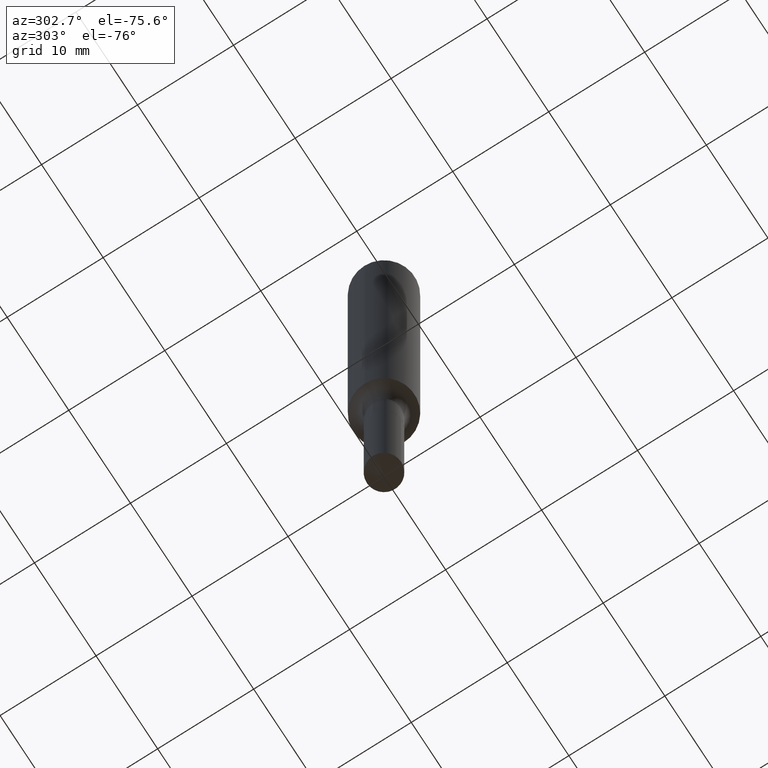
[diagram: clean part render]
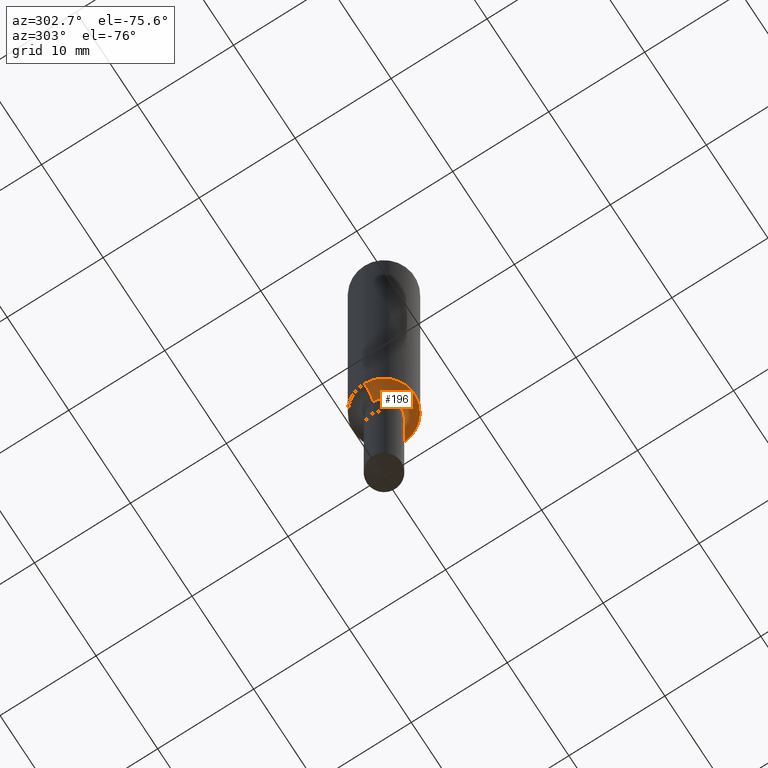
[diagram: same view with one face highlighted and labeled with its STEP entity id]
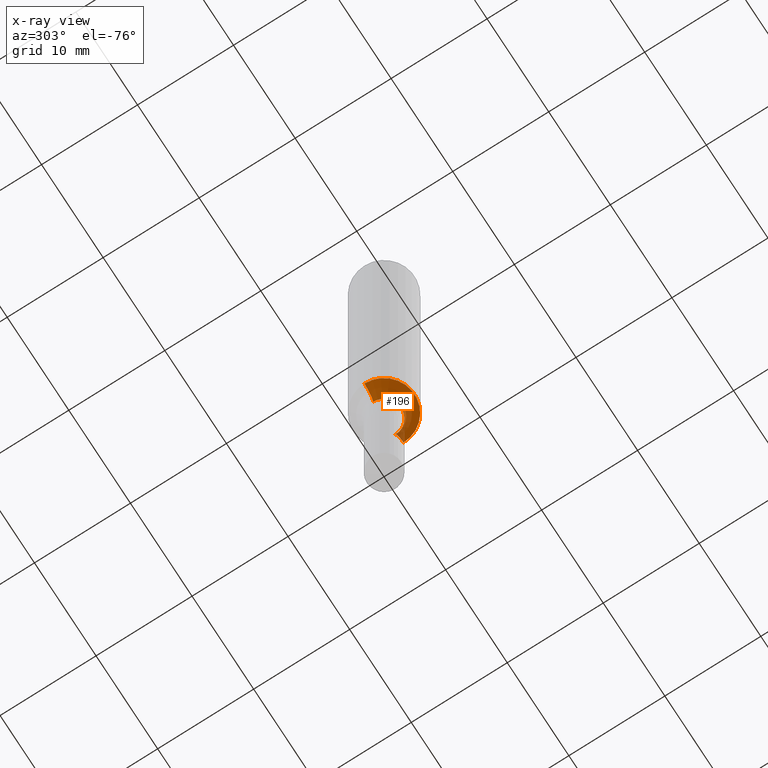
[diagram: x-ray of the same camera — body ghosted, the highlighted face saturated]
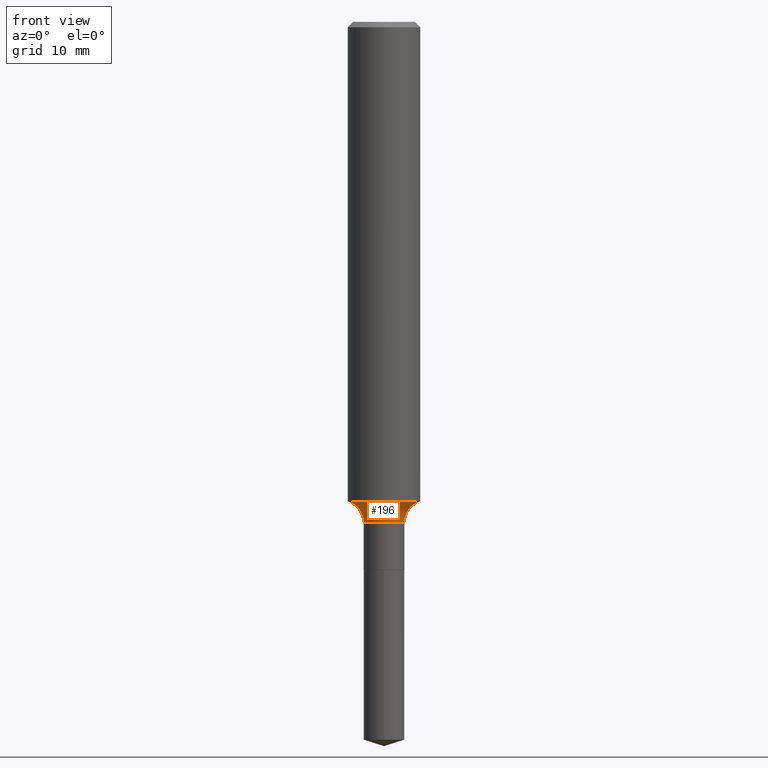
[diagram: same view with one face highlighted and labeled with its STEP entity id]
A machine part, auxiliary view. The second image highlights one B-rep face of the part: STEP entity #196.
The next image is the same camera in x-ray: the body ghosted, the highlighted face saturated — about 4% of this face is hidden behind the body in this view.
A second angle (front view) of the same face is appended — the face is thin or edge-on in the first view.
In plain terms, the highlighted toroidal blend (fillet) surface has major radius 3.7668 mm and minor (blend) radius 1.9812 mm.
Its self-contained STEP definition (entity closure, byte-faithful):
#15 = ORIENTED_EDGE ( 'NONE', *, *, #25, .F. ) ;
#21 = EDGE_LOOP ( 'NONE', ( #125, #430, #233, #15 ) ) ;
#25 = EDGE_CURVE ( 'NONE', #171, #136, #375, .T. ) ;
#37 = DIRECTION ( 'NONE',  ( 7.105427357601001859E-15, 1.000000000000000000, -3.491481338843145583E-15 ) ) ;
#40 = DIRECTION ( 'NONE',  ( 1.000000000000000000, -6.982962677686266711E-15, 0.000000000000000000 ) ) ;
#45 = CARTESIAN_POINT ( 'NONE',  ( 4.227971019013483248E-29, -6.036422086725915643E-15, -1.728900000000000325 ) ) ;
#67 = CIRCLE ( 'NONE', #408, 0.07029999999999998750 ) ;
#73 = DIRECTION ( 'NONE',  ( -2.445468806185136597E-29, 3.491481338843145583E-15, 1.000000000000000000 ) ) ;
#84 = DIRECTION ( 'NONE',  ( -2.445468806185136597E-29, 3.491481338843145583E-15, 1.000000000000000000 ) ) ;
#97 = AXIS2_PLACEMENT_3D ( 'NONE', #318, #84, #428 ) ;
#125 = ORIENTED_EDGE ( 'NONE', *, *, #357, .F. ) ;
#136 = VERTEX_POINT ( 'NONE', #221 ) ;
#139 = CIRCLE ( 'NONE', #97, 0.1250000000000001943 ) ;
#171 = VERTEX_POINT ( 'NONE', #272 ) ;
#196 = ADVANCED_FACE ( 'NONE', ( #421 ), #416, .F. ) ;
#215 = DIRECTION ( 'NONE',  ( 1.000000000000000000, -6.982962677686268288E-15, 0.000000000000000000 ) ) ;
#221 = CARTESIAN_POINT ( 'NONE',  ( 0.07029999999999998750, -6.527324362967259801E-15, -1.728900000000000325 ) ) ;
#232 = CARTESIAN_POINT ( 'NONE',  ( 4.227971019013483248E-29, -6.036422086725915643E-15, -1.728900000000000325 ) ) ;
#233 = ORIENTED_EDGE ( 'NONE', *, *, #236, .T. ) ;
#235 = CARTESIAN_POINT ( 'NONE',  ( -0.07029999999999998750, -5.818323939397324002E-15, -1.728900000000000325 ) ) ;
#236 = EDGE_CURVE ( 'NONE', #280, #136, #67, .T. ) ;
#258 = AXIS2_PLACEMENT_3D ( 'NONE', #232, #383, #454 ) ;
#267 = EDGE_CURVE ( 'NONE', #427, #280, #342, .T. ) ;
#272 = CARTESIAN_POINT ( 'NONE',  ( 0.1250000000000003053, -6.649391325372587997E-15, -1.654461367556892881 ) ) ;
#273 = AXIS2_PLACEMENT_3D ( 'NONE', #453, #405, #215 ) ;
#280 = VERTEX_POINT ( 'NONE', #235 ) ;
#309 = DIRECTION ( 'NONE',  ( -1.000000000000000000, 7.105427357601008170E-15, 0.000000000000000000 ) ) ;
#318 = CARTESIAN_POINT ( 'NONE',  ( 4.045933665398783459E-29, -5.776520990661802291E-15, -1.654461367556892881 ) ) ;
#342 = CIRCLE ( 'NONE', #473, 0.07800000000000002764 ) ;
#357 = EDGE_CURVE ( 'NONE', #427, #171, #139, .T. ) ;
#375 = CIRCLE ( 'NONE', #273, 0.07800000000000002764 ) ;
#383 = DIRECTION ( 'NONE',  ( -2.445468806185136597E-29, 3.491481338843145583E-15, 1.000000000000000000 ) ) ;
#390 = CARTESIAN_POINT ( 'NONE',  ( -0.1250000000000003053, -4.888342570961675481E-15, -1.654461367556892881 ) ) ;
#405 = DIRECTION ( 'NONE',  ( -6.982962677686266711E-15, -1.000000000000000000, 3.491481338843145583E-15 ) ) ;
#408 = AXIS2_PLACEMENT_3D ( 'NONE', #45, #73, #40 ) ;
#416 = TOROIDAL_SURFACE ( 'NONE', #258, 0.1482999999999999596, 0.07800000000000002764 ) ;
#420 = CARTESIAN_POINT ( 'NONE',  ( -0.1482999999999999596, -4.982687209593687945E-15, -1.728900000000000325 ) ) ;
#421 = FACE_OUTER_BOUND ( 'NONE', #21, .T. ) ;
#427 = VERTEX_POINT ( 'NONE', #390 ) ;
#428 = DIRECTION ( 'NONE',  ( 1.000000000000000000, -6.982962677686267499E-15, 0.000000000000000000 ) ) ;
#430 = ORIENTED_EDGE ( 'NONE', *, *, #267, .T. ) ;
#453 = CARTESIAN_POINT ( 'NONE',  ( 0.1482999999999999596, -7.071995451826789425E-15, -1.728900000000000325 ) ) ;
#454 = DIRECTION ( 'NONE',  ( 1.000000000000000000, -6.982962677686265133E-15, 4.883557194083112340E-29 ) ) ;
#473 = AXIS2_PLACEMENT_3D ( 'NONE', #420, #37, #309 ) ;